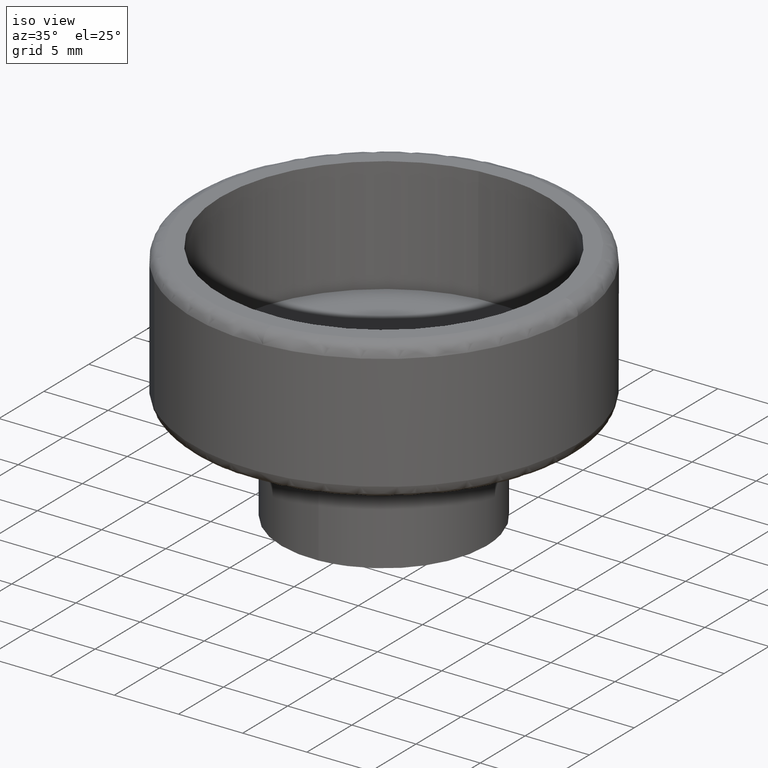
[diagram: clean part render]
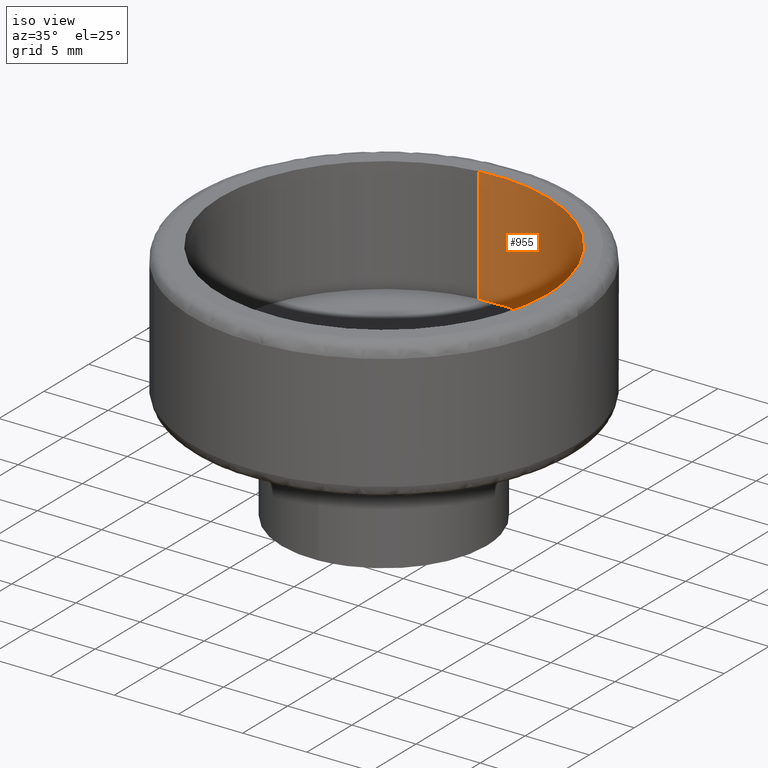
[diagram: same view with one face highlighted and labeled with its STEP entity id]
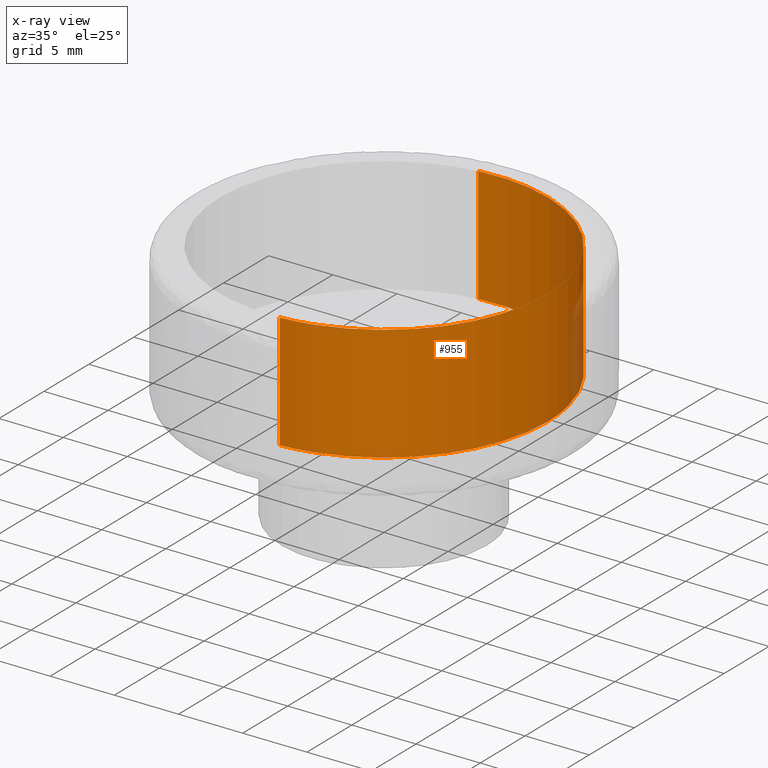
[diagram: x-ray of the same camera — body ghosted, the highlighted face saturated]
A machine part, iso view. The second image highlights one B-rep face of the part: STEP entity #955.
The next image is the same camera in x-ray: the body ghosted, the highlighted face saturated — about 2% of this face is hidden behind the body in this view.
In plain terms, the highlighted face is a freeform B-spline surface patch.
Its self-contained STEP definition (entity closure, byte-faithful):
#853=CARTESIAN_POINT('',(-1.504936491873671,12.660871461136745,19.725000000000005));
#854=CARTESIAN_POINT('',(-1.142587790134215,12.703942096969717,19.725000000000005));
#855=CARTESIAN_POINT('',(-0.778368879069427,12.726218679878800,19.725000000000009));
#856=CARTESIAN_POINT('',(11.947849800809374,13.504587558948227,19.725000000000012));
#857=CARTESIAN_POINT('',(12.726218679878800,0.778368879069427,19.725000000000009));
#858=CARTESIAN_POINT('',(13.504587558948227,-11.947849800809374,19.725000000000012));
#859=CARTESIAN_POINT('',(0.778368879069427,-12.726218679878800,19.725000000000009));
#860=CARTESIAN_POINT('',(-1.504936491873671,12.660871461136745,10.269374999999995));
#861=CARTESIAN_POINT('',(-1.142587790134215,12.703942096969717,10.269374999999997));
#862=CARTESIAN_POINT('',(-0.778368879069427,12.726218679878800,10.269375000000000));
#863=CARTESIAN_POINT('',(11.947849800809374,13.504587558948227,10.269374999999997));
#864=CARTESIAN_POINT('',(12.726218679878800,0.778368879069427,10.269375000000000));
#865=CARTESIAN_POINT('',(13.504587558948227,-11.947849800809374,10.269374999999997));
#866=CARTESIAN_POINT('',(0.778368879069427,-12.726218679878800,10.269375000000000));
#874=(BOUNDED_SURFACE()B_SPLINE_SURFACE(2,1,((#853,#860),(#854,#861),(#855,#862),(#856,#863),(#857,#864),(#858,#865),(#859,#866)),.UNSPECIFIED.,.F.,.F.,.U.)B_SPLINE_SURFACE_WITH_KNOTS((3,2,2,3),(2,2),(0.0,0.844995667241115,21.969887348268959,43.094779029296809),(0.0,9.455625000000012),.UNSPECIFIED.)GEOMETRIC_REPRESENTATION_ITEM()RATIONAL_B_SPLINE_SURFACE(((0.977505800795127,0.977505800795127),(0.988284271247462,0.988284271247462),(1.0,1.0),(0.707106781186548,0.707106781186548),(1.0,1.0),(0.707106781186548,0.707106781186548),(1.0,1.0)))REPRESENTATION_ITEM('')SURFACE());
#875=CARTESIAN_POINT('',(-1.504928556916255,12.660872404321671,10.500000000000041));
#876=VERTEX_POINT('',#875);
#877=CARTESIAN_POINT('',(12.750000000000000,0.0,10.500000000000000));
#878=VERTEX_POINT('',#877);
#879=CARTESIAN_POINT('',(-1.504928556916255,12.660872404321671,10.500000000000039));
#880=CARTESIAN_POINT('',(-0.755103516139841,12.749999999999998,10.500000000000004));
#881=CARTESIAN_POINT('',(0.0,12.750000000000000,10.500000000000000));
#882=CARTESIAN_POINT('',(12.749999999999998,12.749999999999998,10.500000000000002));
#883=CARTESIAN_POINT('',(12.750000000000000,0.0,10.500000000000000));
#891=(BOUNDED_CURVE()B_SPLINE_CURVE(2,(#879,#880,#881,#882,#883),.UNSPECIFIED.,.F.,.U.)B_SPLINE_CURVE_WITH_KNOTS((3,2,3),(0.229562579435181,0.250000000000000,0.500000000000000),.UNSPECIFIED.)CURVE()GEOMETRIC_REPRESENTATION_ITEM()RATIONAL_B_SPLINE_CURVE((0.956026961794617,0.976056072426104,1.0,0.707106781186548,1.0))REPRESENTATION_ITEM(''));
#892=EDGE_CURVE('',#876,#878,#891,.T.);
#893=ORIENTED_EDGE('',*,*,#892,.T.);
#894=CARTESIAN_POINT('',(0.778355960860145,-12.726219469977170,10.500000000000000));
#895=VERTEX_POINT('',#894);
#896=CARTESIAN_POINT('',(12.750000000000000,0.0,10.500000000000000));
#897=CARTESIAN_POINT('',(12.750000000000000,-11.994014550750411,10.499999999999998));
#898=CARTESIAN_POINT('',(0.778355960860145,-12.726219469977163,10.499999999999998));
#906=(BOUNDED_CURVE()B_SPLINE_CURVE(2,(#896,#897,#898),.UNSPECIFIED.,.F.,.U.)B_SPLINE_CURVE_WITH_KNOTS((3,3),(0.500000000000000,0.739333137391861),.UNSPECIFIED.)CURVE()GEOMETRIC_REPRESENTATION_ITEM()RATIONAL_B_SPLINE_CURVE((1.0,0.719603788082303,0.976072417053050))REPRESENTATION_ITEM(''));
#907=EDGE_CURVE('',#878,#895,#906,.T.);
#908=ORIENTED_EDGE('',*,*,#907,.T.);
#909=CARTESIAN_POINT('',(0.778356120248808,-12.726219460228860,19.500000000000000));
#910=VERTEX_POINT('',#909);
#911=CARTESIAN_POINT('',(0.778356120248808,-12.726219460228860,19.500000000000000));
#912=CARTESIAN_POINT('',(0.778355960860145,-12.726219469977170,10.500000000000000));
#913=QUASI_UNIFORM_CURVE('',1,(#911,#912),.UNSPECIFIED.,.F.,.U.);
#914=EDGE_CURVE('',#910,#895,#913,.T.);
#915=ORIENTED_EDGE('',*,*,#914,.F.);
#916=CARTESIAN_POINT('',(12.750000000000000,0.0,19.500000000000000));
#917=VERTEX_POINT('',#916);
#918=CARTESIAN_POINT('',(12.750000000000000,0.0,19.500000000000000));
#919=CARTESIAN_POINT('',(12.750000000000000,-11.994014400251508,19.500000000000004));
#920=CARTESIAN_POINT('',(0.778356120248808,-12.726219460228863,19.500000000000004));
#928=(BOUNDED_CURVE()B_SPLINE_CURVE(2,(#918,#919,#920),.UNSPECIFIED.,.F.,.U.)B_SPLINE_CURVE_WITH_KNOTS((3,3),(0.500000000000000,0.739333135230810),.UNSPECIFIED.)CURVE()GEOMETRIC_REPRESENTATION_ITEM()RATIONAL_B_SPLINE_CURVE((1.0,0.719603790614132,0.976072412421499))REPRESENTATION_ITEM(''));
#929=EDGE_CURVE('',#917,#910,#928,.T.);
#930=ORIENTED_EDGE('',*,*,#929,.F.);
#931=CARTESIAN_POINT('',(-1.504928654753792,12.660872392692321,19.500000000000000));
#932=VERTEX_POINT('',#931);
#933=CARTESIAN_POINT('',(-1.504928654753792,12.660872392692326,19.500000000000004));
#934=CARTESIAN_POINT('',(-0.755103565575763,12.749999999999998,19.500000000000004));
#935=CARTESIAN_POINT('',(0.0,12.750000000000000,19.500000000000000));
#936=CARTESIAN_POINT('',(12.749999999999998,12.749999999999998,19.500000000000004));
#937=CARTESIAN_POINT('',(12.750000000000000,0.0,19.500000000000000));
#945=(BOUNDED_CURVE()B_SPLINE_CURVE(2,(#933,#934,#935,#936,#937),.UNSPECIFIED.,.F.,.U.)B_SPLINE_CURVE_WITH_KNOTS((3,2,3),(0.229562578129200,0.250000000000000,0.500000000000000),.UNSPECIFIED.)CURVE()GEOMETRIC_REPRESENTATION_ITEM()RATIONAL_B_SPLINE_CURVE((0.956026959234838,0.976056070896051,1.0,0.707106781186548,1.0))REPRESENTATION_ITEM(''));
#946=EDGE_CURVE('',#932,#917,#945,.T.);
#947=ORIENTED_EDGE('',*,*,#946,.F.);
#948=CARTESIAN_POINT('',(-1.504928654753792,12.660872392692321,19.500000000000000));
#949=CARTESIAN_POINT('',(-1.504928556916255,12.660872404321671,10.500000000000041));
#950=QUASI_UNIFORM_CURVE('',1,(#948,#949),.UNSPECIFIED.,.F.,.U.);
#951=EDGE_CURVE('',#932,#876,#950,.T.);
#952=ORIENTED_EDGE('',*,*,#951,.T.);
#953=EDGE_LOOP('',(#893,#908,#915,#930,#947,#952));
#954=FACE_OUTER_BOUND('',#953,.T.);
#955=ADVANCED_FACE('',(#954),#874,.F.);